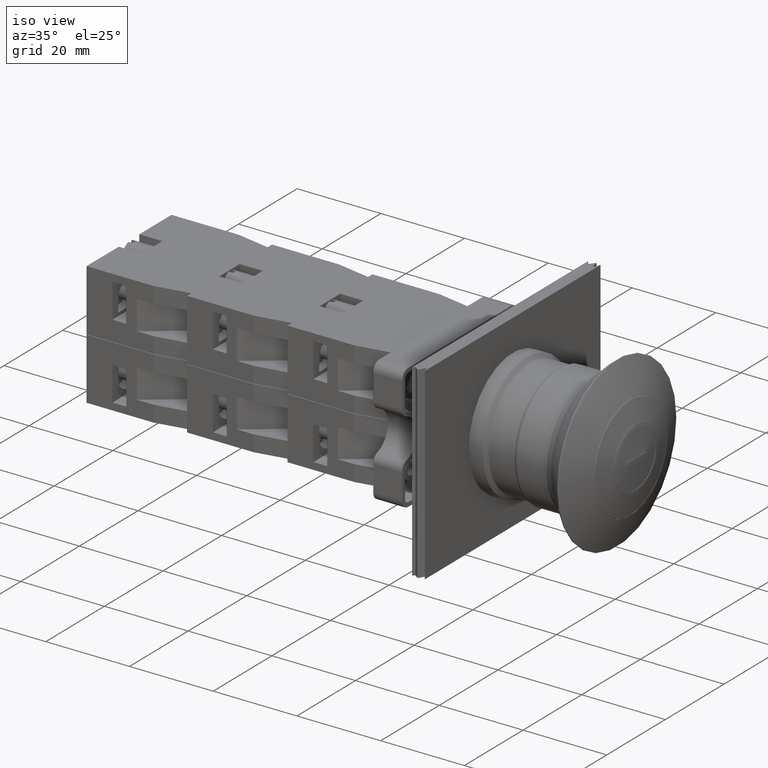
[diagram: clean part render]
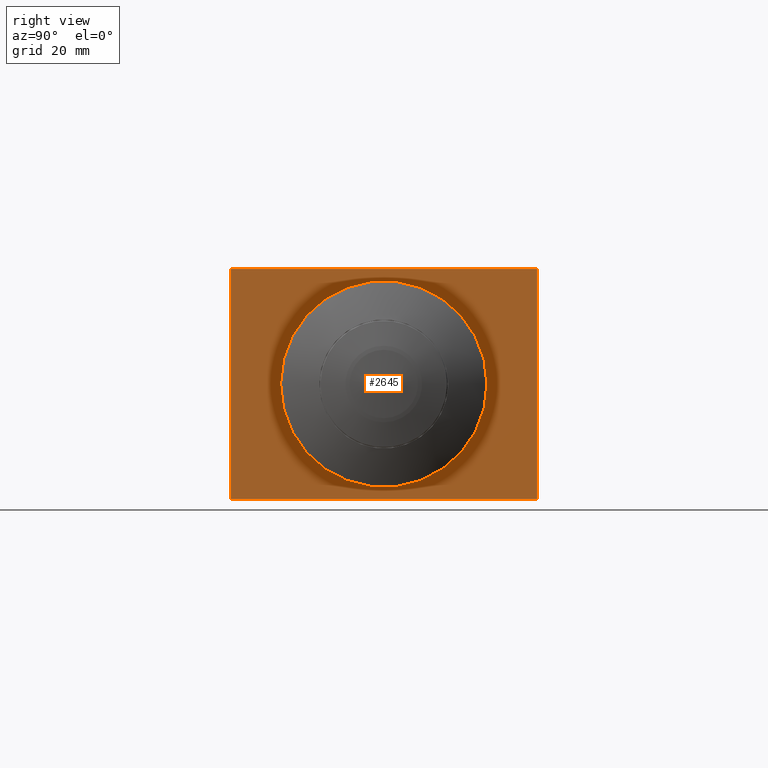
[diagram: tour spotlight — one face highlighted and labeled with its STEP entity id]
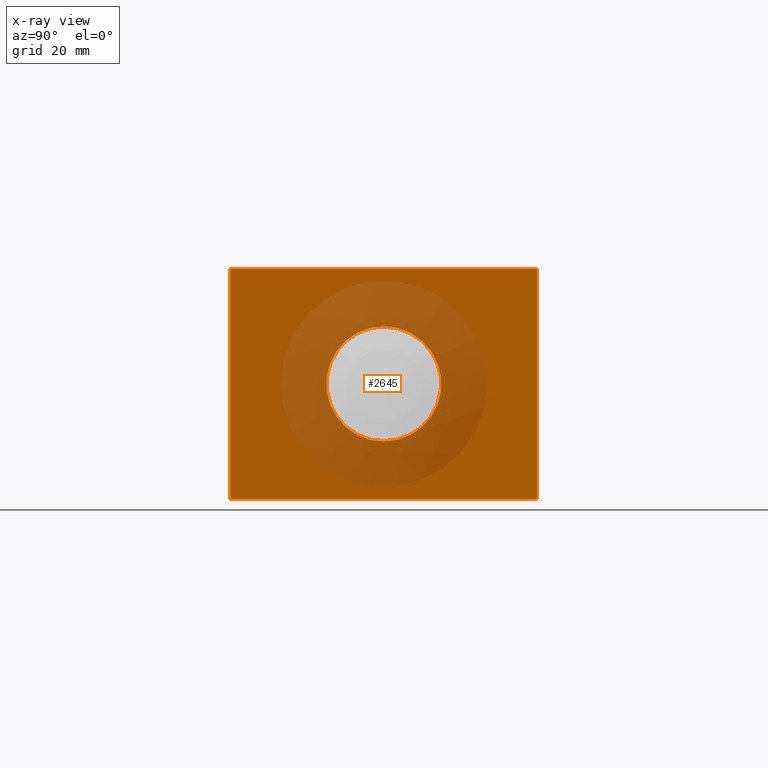
[diagram: x-ray of the same camera — body ghosted, this tour face saturated]
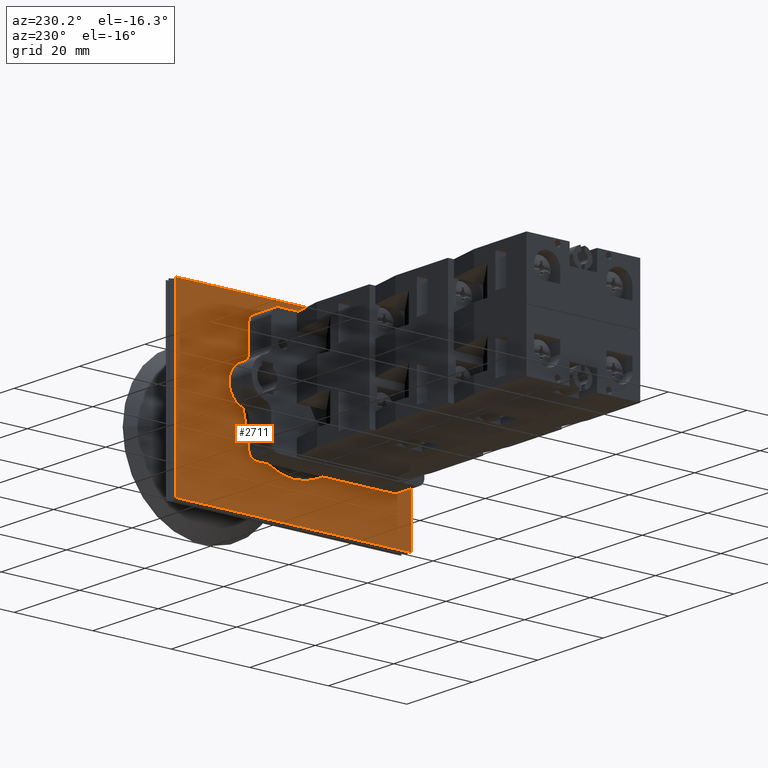
[diagram: tour spotlight — one face highlighted and labeled with its STEP entity id]
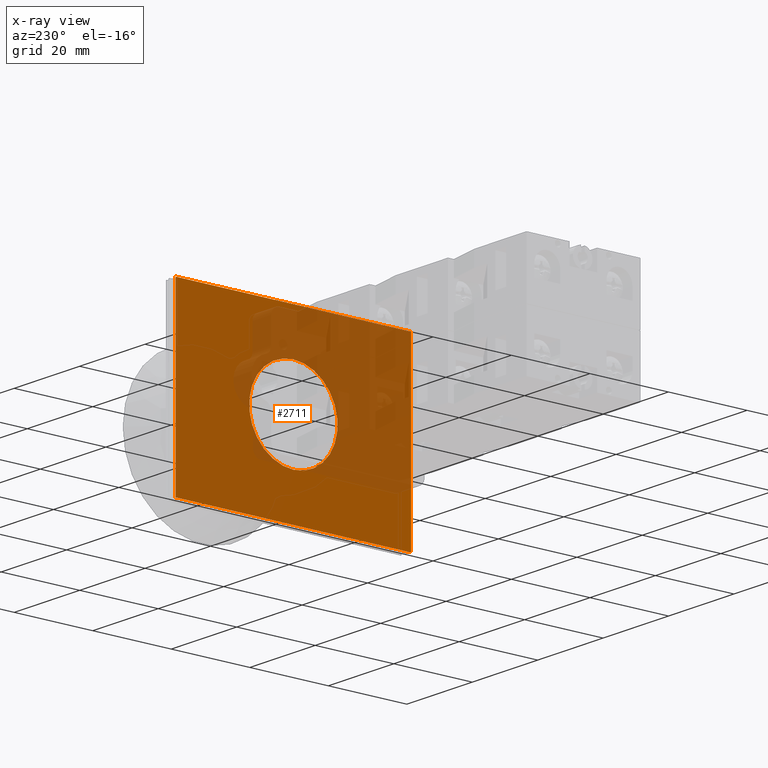
[diagram: x-ray of the same camera — body ghosted, this tour face saturated]
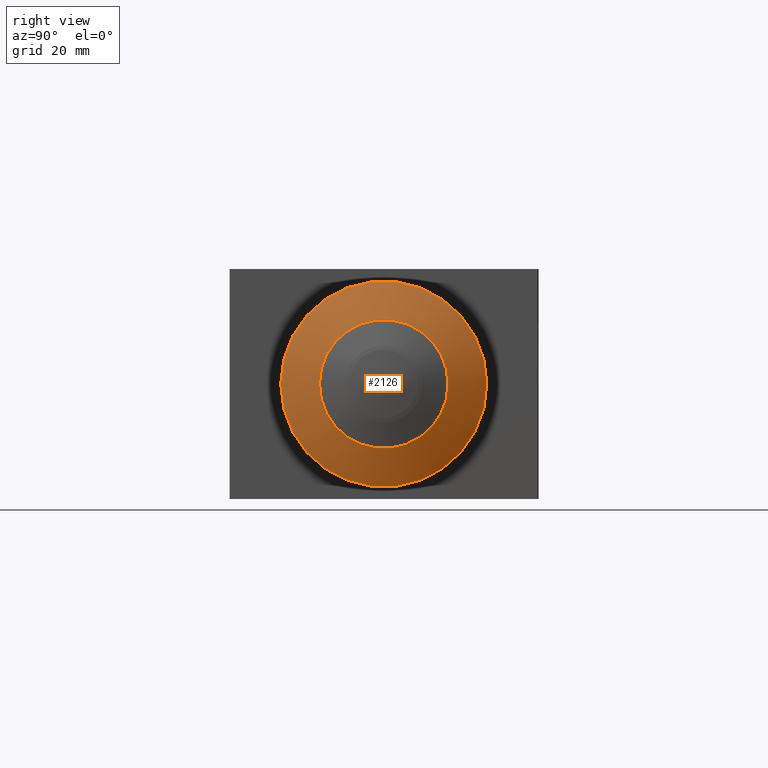
[diagram: tour spotlight — one face highlighted and labeled with its STEP entity id]
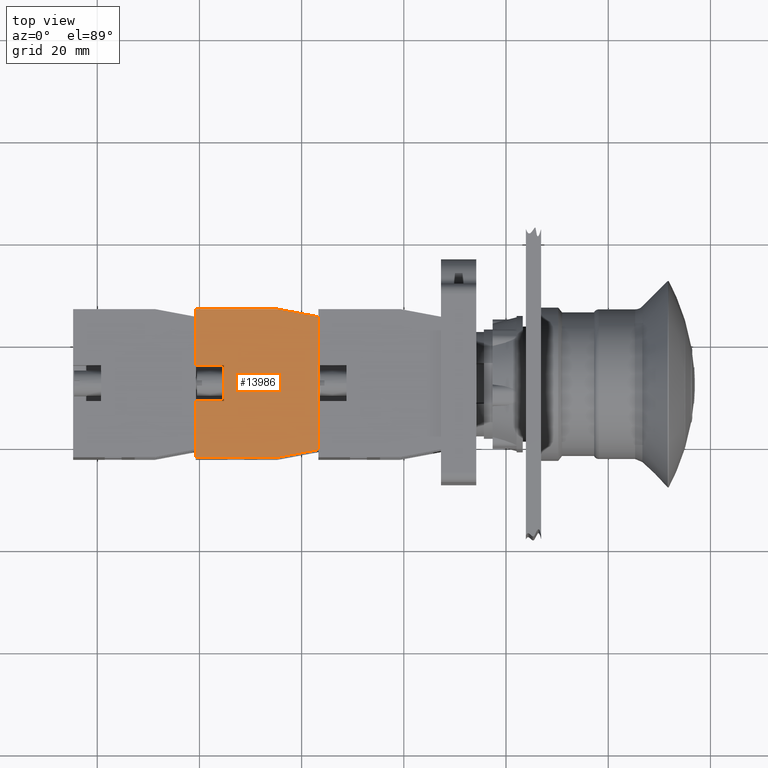
[diagram: tour spotlight — one face highlighted and labeled with its STEP entity id]
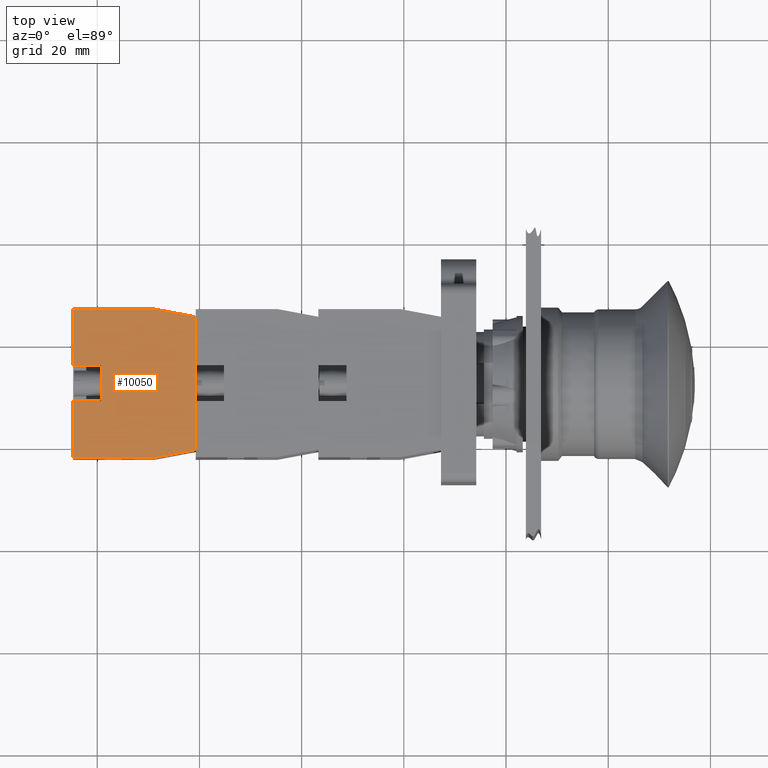
[diagram: tour spotlight — one face highlighted and labeled with its STEP entity id]
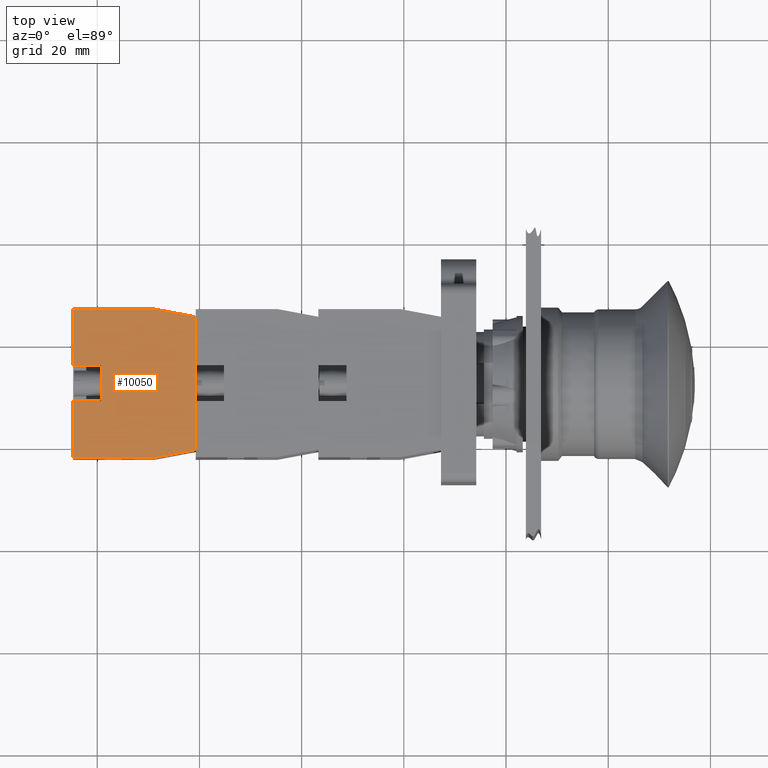
[diagram: tour spotlight — one face highlighted and labeled with its STEP entity id]
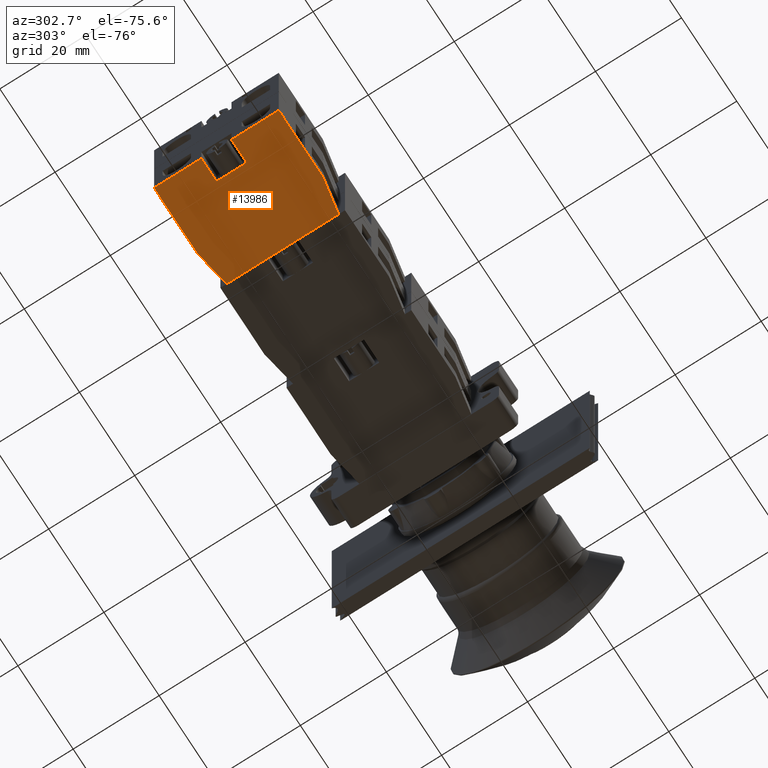
[diagram: tour spotlight — one face highlighted and labeled with its STEP entity id]
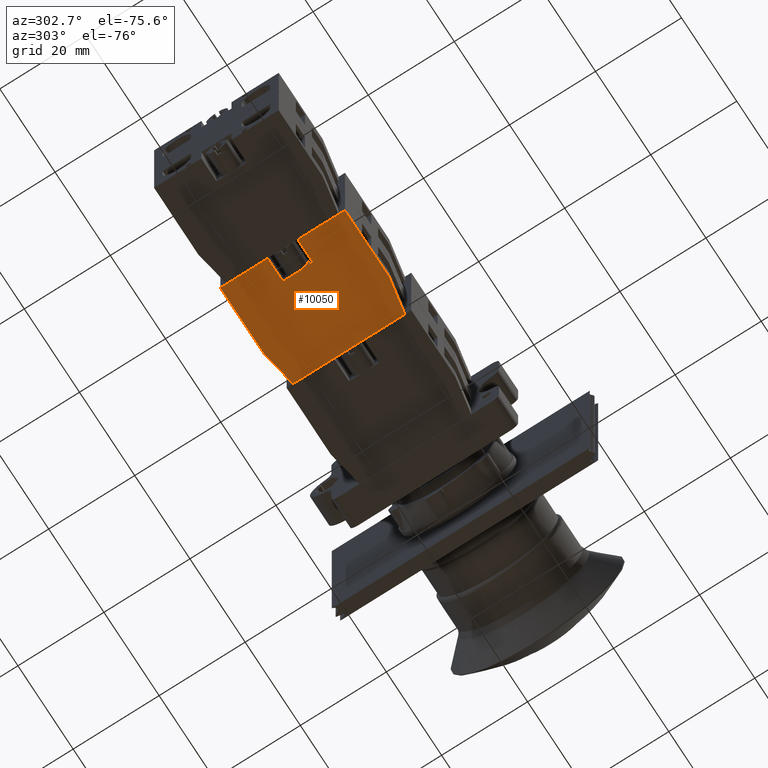
[diagram: tour spotlight — one face highlighted and labeled with its STEP entity id]
A machine part: a face-by-face anatomy tour. The part has 1171 B-rep faces; the first image is the clean iso view, then the 8 largest visible faces are spotlighted one at a time (largest first), each with its STEP entity span.

Face 1 — right view, entity #2645. An x-ray twin of the same camera follows (body ghosted, this face saturated) — the face is partly hidden behind the body. In plain terms, the highlighted planar face has unit normal (1, -0, 0).
Definition (entity closure, byte-faithful):
#2550=CARTESIAN_POINT('',(-12.704183619849175,-32.725398273954283,11.250000000000000));
#2551=VERTEX_POINT('',#2550);
#2552=CARTESIAN_POINT('',(-12.704183619849179,-32.725398273954283,22.500000000000000));
#2553=DIRECTION('',(-1.0,0.0,0.0));
#2554=DIRECTION('',(0.0,0.0,1.0));
#2555=AXIS2_PLACEMENT_3D('',#2552,#2553,#2554);
#2556=CIRCLE('',#2555,11.250000000000000);
#2557=EDGE_CURVE('',#2551,#2551,#2556,.T.);
#2575=CARTESIAN_POINT('',(-12.704183619849179,-2.725398273954287,45.0));
#2576=VERTEX_POINT('',#2575);
#2585=CARTESIAN_POINT('',(-12.704183619849179,-2.725398273954287,0.0));
#2586=VERTEX_POINT('',#2585);
#2587=CARTESIAN_POINT('',(-12.704183619849179,-2.725398273954287,0.0));
#2588=DIRECTION('',(0.0,0.0,1.0));
#2589=VECTOR('',#2588,45.0);
#2590=LINE('',#2587,#2589);
#2591=EDGE_CURVE('',#2586,#2576,#2590,.T.);
#2612=CARTESIAN_POINT('',(-12.704183619849179,-2.725398273954287,0.0));
#2613=DIRECTION('',(1.0,0.0,0.0));
#2614=DIRECTION('',(0.0,0.0,-1.0));
#2615=AXIS2_PLACEMENT_3D('',#2612,#2613,#2614);
#2616=PLANE('',#2615);
#2617=CARTESIAN_POINT('',(-12.704183619849172,-62.725398273954283,45.0));
#2618=VERTEX_POINT('',#2617);
#2619=CARTESIAN_POINT('',(-12.704183619849179,-2.725398273954287,45.0));
#2620=DIRECTION('',(0.0,-1.0,0.0));
#2621=VECTOR('',#2620,60.0);
#2622=LINE('',#2619,#2621);
#2623=EDGE_CURVE('',#2576,#2618,#2622,.T.);
#2624=ORIENTED_EDGE('',*,*,#2623,.T.);
#2625=CARTESIAN_POINT('',(-12.704183619849172,-62.725398273954283,0.0));
#2626=VERTEX_POINT('',#2625);
#2627=CARTESIAN_POINT('',(-12.704183619849172,-62.725398273954283,0.0));
#2628=DIRECTION('',(0.0,0.0,1.0));
#2629=VECTOR('',#2628,45.0);
#2630=LINE('',#2627,#2629);
#2631=EDGE_CURVE('',#2626,#2618,#2630,.T.);
#2632=ORIENTED_EDGE('',*,*,#2631,.F.);
#2633=CARTESIAN_POINT('',(-12.704183619849172,-62.725398273954283,0.0));
#2634=DIRECTION('',(0.0,1.0,0.0));
#2635=VECTOR('',#2634,60.0);
#2636=LINE('',#2633,#2635);
#2637=EDGE_CURVE('',#2626,#2586,#2636,.T.);
#2638=ORIENTED_EDGE('',*,*,#2637,.T.);
#2639=ORIENTED_EDGE('',*,*,#2591,.T.);
#2640=EDGE_LOOP('',(#2624,#2632,#2638,#2639));
#2641=FACE_OUTER_BOUND('',#2640,.T.);
#2642=ORIENTED_EDGE('',*,*,#2557,.T.);
#2643=EDGE_LOOP('',(#2642));
#2644=FACE_BOUND('',#2643,.T.);
#2645=ADVANCED_FACE('',(#2641,#2644),#2616,.T.);

Face 2 — auxiliary view, entity #2711. An x-ray twin of the same camera follows (body ghosted, this face saturated) — the face is partly hidden behind the body. In plain terms, the highlighted planar face has unit normal (-1, 0, -0).
Definition (entity closure, byte-faithful):
#2539=CARTESIAN_POINT('',(-15.704183619849179,-32.725398273954283,11.250000000000000));
#2540=VERTEX_POINT('',#2539);
#2541=CARTESIAN_POINT('',(-15.704183619849179,-32.725398273954283,22.500000000000000));
#2542=DIRECTION('',(1.0,0.0,0.0));
#2543=DIRECTION('',(0.0,0.0,1.0));
#2544=AXIS2_PLACEMENT_3D('',#2541,#2542,#2543);
#2545=CIRCLE('',#2544,11.250000000000000);
#2546=EDGE_CURVE('',#2540,#2540,#2545,.T.);
#2573=CARTESIAN_POINT('',(-15.704183619849179,-2.725398273954287,45.0));
#2574=VERTEX_POINT('',#2573);
#2593=CARTESIAN_POINT('',(-15.704183619849179,-2.725398273954287,0.0));
#2594=VERTEX_POINT('',#2593);
#2603=CARTESIAN_POINT('',(-15.704183619849179,-2.725398273954287,0.0));
#2604=DIRECTION('',(0.0,0.0,1.0));
#2605=VECTOR('',#2604,45.0);
#2606=LINE('',#2603,#2605);
#2607=EDGE_CURVE('',#2594,#2574,#2606,.T.);
#2657=CARTESIAN_POINT('',(-15.704183619849179,-62.725398273954283,45.0));
#2658=VERTEX_POINT('',#2657);
#2667=CARTESIAN_POINT('',(-15.704183619849179,-62.725398273954283,0.0));
#2668=VERTEX_POINT('',#2667);
#2669=CARTESIAN_POINT('',(-15.704183619849179,-62.725398273954283,0.0));
#2670=DIRECTION('',(0.0,0.0,1.0));
#2671=VECTOR('',#2670,45.0);
#2672=LINE('',#2669,#2671);
#2673=EDGE_CURVE('',#2668,#2658,#2672,.T.);
#2687=CARTESIAN_POINT('',(-15.704183619849179,-62.725398273954283,0.0));
#2688=DIRECTION('',(-1.0,0.0,0.0));
#2689=DIRECTION('',(0.0,0.0,1.0));
#2690=AXIS2_PLACEMENT_3D('',#2687,#2688,#2689);
#2691=PLANE('',#2690);
#2692=CARTESIAN_POINT('',(-15.704183619849179,-62.725398273954283,45.0));
#2693=DIRECTION('',(0.0,1.0,0.0));
#2694=VECTOR('',#2693,60.0);
#2695=LINE('',#2692,#2694);
#2696=EDGE_CURVE('',#2658,#2574,#2695,.T.);
#2697=ORIENTED_EDGE('',*,*,#2696,.T.);
#2698=ORIENTED_EDGE('',*,*,#2607,.F.);
#2699=CARTESIAN_POINT('',(-15.704183619849179,-2.725398273954287,0.0));
#2700=DIRECTION('',(0.0,-1.0,0.0));
#2701=VECTOR('',#2700,60.0);
#2702=LINE('',#2699,#2701);
#2703=EDGE_CURVE('',#2594,#2668,#2702,.T.);
#2704=ORIENTED_EDGE('',*,*,#2703,.T.);
#2705=ORIENTED_EDGE('',*,*,#2673,.T.);
#2706=EDGE_LOOP('',(#2697,#2698,#2704,#2705));
#2707=FACE_OUTER_BOUND('',#2706,.T.);
#2708=ORIENTED_EDGE('',*,*,#2546,.T.);
#2709=EDGE_LOOP('',(#2708));
#2710=FACE_BOUND('',#2709,.T.);
#2711=ADVANCED_FACE('',(#2707,#2710),#2691,.T.);

Face 3 — right view, entity #2126. In plain terms, the highlighted spherical surface has radius 42.9695 mm.
Definition (entity closure, byte-faithful):
#2092=CARTESIAN_POINT('',(15.667878094298802,21.284443144865229,0.0));
#2093=VERTEX_POINT('',#2092);
#2094=CARTESIAN_POINT('',(15.667878094298807,1.129839215727505,0.0));
#2095=DIRECTION('',(1.0,0.0,0.0));
#2096=DIRECTION('',(0.0,1.0,0.0));
#2097=AXIS2_PLACEMENT_3D('',#2094,#2095,#2096);
#2098=CIRCLE('',#2097,20.154603929137728);
#2099=EDGE_CURVE('',#2093,#2093,#2098,.T.);
#2107=CARTESIAN_POINT('',(-22.281675257115516,1.129839215727505,0.0));
#2108=DIRECTION('',(0.0,0.0,1.0));
#2109=DIRECTION('',(1.0,0.0,0.0));
#2110=AXIS2_PLACEMENT_3D('',#2107,#2108,#2109);
#2111=SPHERICAL_SURFACE('',#2110,42.969485208834605);
#2112=CARTESIAN_POINT('',(18.801493224914132,13.721500209791040,0.0));
#2113=VERTEX_POINT('',#2112);
#2114=CARTESIAN_POINT('',(18.801493224914140,1.129839215727505,0.0));
#2115=DIRECTION('',(1.0,0.0,0.0));
#2116=DIRECTION('',(0.0,1.0,0.0));
#2117=AXIS2_PLACEMENT_3D('',#2114,#2115,#2116);
#2118=CIRCLE('',#2117,12.591660994063536);
#2119=EDGE_CURVE('',#2113,#2113,#2118,.T.);
#2120=ORIENTED_EDGE('',*,*,#2119,.F.);
#2121=EDGE_LOOP('',(#2120));
#2122=FACE_OUTER_BOUND('',#2121,.T.);
#2123=ORIENTED_EDGE('',*,*,#2099,.T.);
#2124=EDGE_LOOP('',(#2123));
#2125=FACE_BOUND('',#2124,.T.);
#2126=ADVANCED_FACE('',(#2122,#2125),#2111,.T.);

Face 4 — top view, entity #13986. In plain terms, the highlighted planar face has unit normal (-0, -0, 1).
Definition (entity closure, byte-faithful):
#12289=CARTESIAN_POINT('',(-44.936741828918457,7.797073323279626,14.699999999999999));
#12290=VERTEX_POINT('',#12289);
#12297=CARTESIAN_POINT('',(-44.936741828918471,23.797073323279623,14.699999999999999));
#12298=VERTEX_POINT('',#12297);
#12299=CARTESIAN_POINT('',(-44.936741828918457,7.797073323279626,14.699999999999999));
#12300=DIRECTION('',(0.0,1.0,0.0));
#12301=VECTOR('',#12300,15.999999999999996);
#12302=LINE('',#12299,#12301);
#12303=EDGE_CURVE('',#12290,#12298,#12302,.T.);
#12370=CARTESIAN_POINT('',(-43.436741828918457,-0.202926676720380,14.699999999999999));
#12371=VERTEX_POINT('',#12370);
#12378=CARTESIAN_POINT('',(-43.436741828918457,-0.202926676720380,14.699999999999999));
#12379=DIRECTION('',(-0.184288535050185,0.982872186934322,0.0));
#12380=VECTOR('',#12379,8.139410298049860);
#12381=LINE('',#12378,#12380);
#12382=EDGE_CURVE('',#12371,#12290,#12381,.T.);
#12521=CARTESIAN_POINT('',(-17.436741828918457,-0.202926676720377,14.699999999999999));
#12522=VERTEX_POINT('',#12521);
#12529=CARTESIAN_POINT('',(-17.436741828918457,-0.202926676720377,14.699999999999999));
#12530=DIRECTION('',(-1.0,0.0,0.0));
#12531=VECTOR('',#12530,26.0);
#12532=LINE('',#12529,#12531);
#12533=EDGE_CURVE('',#12522,#12371,#12532,.T.);
#12614=CARTESIAN_POINT('',(-15.936741828918466,7.797073323279626,14.699999999999999));
#12615=VERTEX_POINT('',#12614);
#12622=CARTESIAN_POINT('',(-15.936741828918466,7.797073323279626,14.699999999999999));
#12623=DIRECTION('',(-0.184288535050184,-0.982872186934322,0.0));
#12624=VECTOR('',#12623,8.139410298049855);
#12625=LINE('',#12622,#12624);
#12626=EDGE_CURVE('',#12615,#12522,#12625,.T.);
#13721=CARTESIAN_POINT('',(-26.936741828918468,18.297073323279626,14.699999999999999));
#13722=VERTEX_POINT('',#13721);
#13731=CARTESIAN_POINT('',(-26.936741828918468,23.797073323279626,14.699999999999999));
#13732=VERTEX_POINT('',#13731);
#13733=CARTESIAN_POINT('',(-26.936741828918468,23.797073323279626,14.699999999999999));
#13734=DIRECTION('',(0.0,-1.0,0.0));
#13735=VECTOR('',#13734,5.500000000000000);
#13736=LINE('',#13733,#13735);
#13737=EDGE_CURVE('',#13732,#13722,#13736,.T.);
#13792=CARTESIAN_POINT('',(-33.936741828918464,18.297073323279619,14.699999999999999));
#13793=VERTEX_POINT('',#13792);
#13801=CARTESIAN_POINT('',(-33.936741828918464,23.797073323279623,14.699999999999999));
#13802=VERTEX_POINT('',#13801);
#13809=CARTESIAN_POINT('',(-33.936741828918464,18.297073323279619,14.699999999999999));
#13810=DIRECTION('',(0.0,1.0,0.0));
#13811=VECTOR('',#13810,5.500000000000004);
#13812=LINE('',#13809,#13811);
#13813=EDGE_CURVE('',#13793,#13802,#13812,.T.);
#13826=CARTESIAN_POINT('',(-26.936741828918468,18.297073323279626,14.699999999999999));
#13827=DIRECTION('',(-1.0,0.0,0.0));
#13828=VECTOR('',#13827,6.999999999999996);
#13829=LINE('',#13826,#13828);
#13830=EDGE_CURVE('',#13722,#13793,#13829,.T.);
#13846=CARTESIAN_POINT('',(-15.936741828918466,23.797073323279626,14.699999999999999));
#13847=VERTEX_POINT('',#13846);
#13848=CARTESIAN_POINT('',(-26.936741828918468,23.797073323279626,14.699999999999999));
#13849=DIRECTION('',(1.0,0.0,0.0));
#13850=VECTOR('',#13849,11.000000000000002);
#13851=LINE('',#13848,#13850);
#13852=EDGE_CURVE('',#13732,#13847,#13851,.T.);
#13869=CARTESIAN_POINT('',(-44.936741828918471,23.797073323279623,14.699999999999999));
#13870=DIRECTION('',(1.0,0.0,0.0));
#13871=VECTOR('',#13870,11.000000000000007);
#13872=LINE('',#13869,#13871);
#13873=EDGE_CURVE('',#12298,#13802,#13872,.T.);
#13917=CARTESIAN_POINT('',(-15.936741828918466,23.797073323279626,14.699999999999999));
#13918=DIRECTION('',(0.0,-1.0,0.0));
#13919=VECTOR('',#13918,16.0);
#13920=LINE('',#13917,#13919);
#13921=EDGE_CURVE('',#13847,#12615,#13920,.T.);
#13969=CARTESIAN_POINT('',(-30.436741828918457,12.124046801833057,14.699999999999999));
#13970=DIRECTION('',(0.0,0.0,1.0));
#13971=DIRECTION('',(1.0,0.0,0.0));
#13972=AXIS2_PLACEMENT_3D('',#13969,#13970,#13971);
#13973=PLANE('',#13972);
#13974=ORIENTED_EDGE('',*,*,#13813,.T.);
#13975=ORIENTED_EDGE('',*,*,#13873,.F.);
#13976=ORIENTED_EDGE('',*,*,#12303,.F.);
#13977=ORIENTED_EDGE('',*,*,#12382,.F.);
#13978=ORIENTED_EDGE('',*,*,#12533,.F.);
#13979=ORIENTED_EDGE('',*,*,#12626,.F.);
#13980=ORIENTED_EDGE('',*,*,#13921,.F.);
#13981=ORIENTED_EDGE('',*,*,#13852,.F.);
#13982=ORIENTED_EDGE('',*,*,#13737,.T.);
#13983=ORIENTED_EDGE('',*,*,#13830,.T.);
#13984=EDGE_LOOP('',(#13974,#13975,#13976,#13977,#13978,#13979,#13980,#13981,#13982,#13983));
#13985=FACE_OUTER_BOUND('',#13984,.T.);
#13986=ADVANCED_FACE('',(#13985),#13973,.T.);

Face 5 — top view, entity #10050. In plain terms, the highlighted planar face has unit normal (-0, -0, 1).
Definition (entity closure, byte-faithful):
#8353=CARTESIAN_POINT('',(-44.936741828918457,7.797073323279626,14.699999999999999));
#8354=VERTEX_POINT('',#8353);
#8361=CARTESIAN_POINT('',(-44.936741828918471,23.797073323279623,14.699999999999999));
#8362=VERTEX_POINT('',#8361);
#8363=CARTESIAN_POINT('',(-44.936741828918457,7.797073323279626,14.699999999999999));
#8364=DIRECTION('',(0.0,1.0,0.0));
#8365=VECTOR('',#8364,15.999999999999996);
#8366=LINE('',#8363,#8365);
#8367=EDGE_CURVE('',#8354,#8362,#8366,.T.);
#8434=CARTESIAN_POINT('',(-43.436741828918457,-0.202926676720380,14.699999999999999));
#8435=VERTEX_POINT('',#8434);
#8442=CARTESIAN_POINT('',(-43.436741828918457,-0.202926676720380,14.699999999999999));
#8443=DIRECTION('',(-0.184288535050185,0.982872186934322,0.0));
#8444=VECTOR('',#8443,8.139410298049860);
#8445=LINE('',#8442,#8444);
#8446=EDGE_CURVE('',#8435,#8354,#8445,.T.);
#8585=CARTESIAN_POINT('',(-17.436741828918457,-0.202926676720377,14.699999999999999));
#8586=VERTEX_POINT('',#8585);
#8593=CARTESIAN_POINT('',(-17.436741828918457,-0.202926676720377,14.699999999999999));
#8594=DIRECTION('',(-1.0,0.0,0.0));
#8595=VECTOR('',#8594,26.0);
#8596=LINE('',#8593,#8595);
#8597=EDGE_CURVE('',#8586,#8435,#8596,.T.);
#8678=CARTESIAN_POINT('',(-15.936741828918466,7.797073323279626,14.699999999999999));
#8679=VERTEX_POINT('',#8678);
#8686=CARTESIAN_POINT('',(-15.936741828918466,7.797073323279626,14.699999999999999));
#8687=DIRECTION('',(-0.184288535050184,-0.982872186934322,0.0));
#8688=VECTOR('',#8687,8.139410298049855);
#8689=LINE('',#8686,#8688);
#8690=EDGE_CURVE('',#8679,#8586,#8689,.T.);
#9785=CARTESIAN_POINT('',(-26.936741828918468,18.297073323279626,14.699999999999999));
#9786=VERTEX_POINT('',#9785);
#9795=CARTESIAN_POINT('',(-26.936741828918468,23.797073323279626,14.699999999999999));
#9796=VERTEX_POINT('',#9795);
#9797=CARTESIAN_POINT('',(-26.936741828918468,23.797073323279626,14.699999999999999));
#9798=DIRECTION('',(0.0,-1.0,0.0));
#9799=VECTOR('',#9798,5.500000000000000);
#9800=LINE('',#9797,#9799);
#9801=EDGE_CURVE('',#9796,#9786,#9800,.T.);
#9856=CARTESIAN_POINT('',(-33.936741828918464,18.297073323279619,14.699999999999999));
#9857=VERTEX_POINT('',#9856);
#9865=CARTESIAN_POINT('',(-33.936741828918464,23.797073323279623,14.699999999999999));
#9866=VERTEX_POINT('',#9865);
#9873=CARTESIAN_POINT('',(-33.936741828918464,18.297073323279619,14.699999999999999));
#9874=DIRECTION('',(0.0,1.0,0.0));
#9875=VECTOR('',#9874,5.500000000000004);
#9876=LINE('',#9873,#9875);
#9877=EDGE_CURVE('',#9857,#9866,#9876,.T.);
#9890=CARTESIAN_POINT('',(-26.936741828918468,18.297073323279626,14.699999999999999));
#9891=DIRECTION('',(-1.0,0.0,0.0));
#9892=VECTOR('',#9891,6.999999999999996);
#9893=LINE('',#9890,#9892);
#9894=EDGE_CURVE('',#9786,#9857,#9893,.T.);
#9910=CARTESIAN_POINT('',(-15.936741828918466,23.797073323279626,14.699999999999999));
#9911=VERTEX_POINT('',#9910);
#9912=CARTESIAN_POINT('',(-26.936741828918468,23.797073323279626,14.699999999999999));
#9913=DIRECTION('',(1.0,0.0,0.0));
#9914=VECTOR('',#9913,11.000000000000002);
#9915=LINE('',#9912,#9914);
#9916=EDGE_CURVE('',#9796,#9911,#9915,.T.);
#9933=CARTESIAN_POINT('',(-44.936741828918471,23.797073323279623,14.699999999999999));
#9934=DIRECTION('',(1.0,0.0,0.0));
#9935=VECTOR('',#9934,11.000000000000007);
#9936=LINE('',#9933,#9935);
#9937=EDGE_CURVE('',#8362,#9866,#9936,.T.);
#9981=CARTESIAN_POINT('',(-15.936741828918466,23.797073323279626,14.699999999999999));
#9982=DIRECTION('',(0.0,-1.0,0.0));
#9983=VECTOR('',#9982,16.0);
#9984=LINE('',#9981,#9983);
#9985=EDGE_CURVE('',#9911,#8679,#9984,.T.);
#10033=CARTESIAN_POINT('',(-30.436741828918457,12.124046801833057,14.699999999999999));
#10034=DIRECTION('',(0.0,0.0,1.0));
#10035=DIRECTION('',(1.0,0.0,0.0));
#10036=AXIS2_PLACEMENT_3D('',#10033,#10034,#10035);
#10037=PLANE('',#10036);
#10038=ORIENTED_EDGE('',*,*,#9877,.T.);
#10039=ORIENTED_EDGE('',*,*,#9937,.F.);
#10040=ORIENTED_EDGE('',*,*,#8367,.F.);
#10041=ORIENTED_EDGE('',*,*,#8446,.F.);
#10042=ORIENTED_EDGE('',*,*,#8597,.F.);
#10043=ORIENTED_EDGE('',*,*,#8690,.F.);
#10044=ORIENTED_EDGE('',*,*,#9985,.F.);
#10045=ORIENTED_EDGE('',*,*,#9916,.F.);
#10046=ORIENTED_EDGE('',*,*,#9801,.T.);
#10047=ORIENTED_EDGE('',*,*,#9894,.T.);
#10048=EDGE_LOOP('',(#10038,#10039,#10040,#10041,#10042,#10043,#10044,#10045,#10046,#10047));
#10049=FACE_OUTER_BOUND('',#10048,.T.);
#10050=ADVANCED_FACE('',(#10049),#10037,.T.);

Face 6 — top view, entity #10050. In plain terms, the highlighted planar face has unit normal (-0, -0, 1).
Definition (entity closure, byte-faithful):
#8353=CARTESIAN_POINT('',(-44.936741828918457,7.797073323279626,14.699999999999999));
#8354=VERTEX_POINT('',#8353);
#8361=CARTESIAN_POINT('',(-44.936741828918471,23.797073323279623,14.699999999999999));
#8362=VERTEX_POINT('',#8361);
#8363=CARTESIAN_POINT('',(-44.936741828918457,7.797073323279626,14.699999999999999));
#8364=DIRECTION('',(0.0,1.0,0.0));
#8365=VECTOR('',#8364,15.999999999999996);
#8366=LINE('',#8363,#8365);
#8367=EDGE_CURVE('',#8354,#8362,#8366,.T.);
#8434=CARTESIAN_POINT('',(-43.436741828918457,-0.202926676720380,14.699999999999999));
#8435=VERTEX_POINT('',#8434);
#8442=CARTESIAN_POINT('',(-43.436741828918457,-0.202926676720380,14.699999999999999));
#8443=DIRECTION('',(-0.184288535050185,0.982872186934322,0.0));
#8444=VECTOR('',#8443,8.139410298049860);
#8445=LINE('',#8442,#8444);
#8446=EDGE_CURVE('',#8435,#8354,#8445,.T.);
#8585=CARTESIAN_POINT('',(-17.436741828918457,-0.202926676720377,14.699999999999999));
#8586=VERTEX_POINT('',#8585);
#8593=CARTESIAN_POINT('',(-17.436741828918457,-0.202926676720377,14.699999999999999));
#8594=DIRECTION('',(-1.0,0.0,0.0));
#8595=VECTOR('',#8594,26.0);
#8596=LINE('',#8593,#8595);
#8597=EDGE_CURVE('',#8586,#8435,#8596,.T.);
#8678=CARTESIAN_POINT('',(-15.936741828918466,7.797073323279626,14.699999999999999));
#8679=VERTEX_POINT('',#8678);
#8686=CARTESIAN_POINT('',(-15.936741828918466,7.797073323279626,14.699999999999999));
#8687=DIRECTION('',(-0.184288535050184,-0.982872186934322,0.0));
#8688=VECTOR('',#8687,8.139410298049855);
#8689=LINE('',#8686,#8688);
#8690=EDGE_CURVE('',#8679,#8586,#8689,.T.);
#9785=CARTESIAN_POINT('',(-26.936741828918468,18.297073323279626,14.699999999999999));
#9786=VERTEX_POINT('',#9785);
#9795=CARTESIAN_POINT('',(-26.936741828918468,23.797073323279626,14.699999999999999));
#9796=VERTEX_POINT('',#9795);
#9797=CARTESIAN_POINT('',(-26.936741828918468,23.797073323279626,14.699999999999999));
#9798=DIRECTION('',(0.0,-1.0,0.0));
#9799=VECTOR('',#9798,5.500000000000000);
#9800=LINE('',#9797,#9799);
#9801=EDGE_CURVE('',#9796,#9786,#9800,.T.);
#9856=CARTESIAN_POINT('',(-33.936741828918464,18.297073323279619,14.699999999999999));
#9857=VERTEX_POINT('',#9856);
#9865=CARTESIAN_POINT('',(-33.936741828918464,23.797073323279623,14.699999999999999));
#9866=VERTEX_POINT('',#9865);
#9873=CARTESIAN_POINT('',(-33.936741828918464,18.297073323279619,14.699999999999999));
#9874=DIRECTION('',(0.0,1.0,0.0));
#9875=VECTOR('',#9874,5.500000000000004);
#9876=LINE('',#9873,#9875);
#9877=EDGE_CURVE('',#9857,#9866,#9876,.T.);
#9890=CARTESIAN_POINT('',(-26.936741828918468,18.297073323279626,14.699999999999999));
#9891=DIRECTION('',(-1.0,0.0,0.0));
#9892=VECTOR('',#9891,6.999999999999996);
#9893=LINE('',#9890,#9892);
#9894=EDGE_CURVE('',#9786,#9857,#9893,.T.);
#9910=CARTESIAN_POINT('',(-15.936741828918466,23.797073323279626,14.699999999999999));
#9911=VERTEX_POINT('',#9910);
#9912=CARTESIAN_POINT('',(-26.936741828918468,23.797073323279626,14.699999999999999));
#9913=DIRECTION('',(1.0,0.0,0.0));
#9914=VECTOR('',#9913,11.000000000000002);
#9915=LINE('',#9912,#9914);
#9916=EDGE_CURVE('',#9796,#9911,#9915,.T.);
#9933=CARTESIAN_POINT('',(-44.936741828918471,23.797073323279623,14.699999999999999));
#9934=DIRECTION('',(1.0,0.0,0.0));
#9935=VECTOR('',#9934,11.000000000000007);
#9936=LINE('',#9933,#9935);
#9937=EDGE_CURVE('',#8362,#9866,#9936,.T.);
#9981=CARTESIAN_POINT('',(-15.936741828918466,23.797073323279626,14.699999999999999));
#9982=DIRECTION('',(0.0,-1.0,0.0));
#9983=VECTOR('',#9982,16.0);
#9984=LINE('',#9981,#9983);
#9985=EDGE_CURVE('',#9911,#8679,#9984,.T.);
#10033=CARTESIAN_POINT('',(-30.436741828918457,12.124046801833057,14.699999999999999));
#10034=DIRECTION('',(0.0,0.0,1.0));
#10035=DIRECTION('',(1.0,0.0,0.0));
#10036=AXIS2_PLACEMENT_3D('',#10033,#10034,#10035);
#10037=PLANE('',#10036);
#10038=ORIENTED_EDGE('',*,*,#9877,.T.);
#10039=ORIENTED_EDGE('',*,*,#9937,.F.);
#10040=ORIENTED_EDGE('',*,*,#8367,.F.);
#10041=ORIENTED_EDGE('',*,*,#8446,.F.);
#10042=ORIENTED_EDGE('',*,*,#8597,.F.);
#10043=ORIENTED_EDGE('',*,*,#8690,.F.);
#10044=ORIENTED_EDGE('',*,*,#9985,.F.);
#10045=ORIENTED_EDGE('',*,*,#9916,.F.);
#10046=ORIENTED_EDGE('',*,*,#9801,.T.);
#10047=ORIENTED_EDGE('',*,*,#9894,.T.);
#10048=EDGE_LOOP('',(#10038,#10039,#10040,#10041,#10042,#10043,#10044,#10045,#10046,#10047));
#10049=FACE_OUTER_BOUND('',#10048,.T.);
#10050=ADVANCED_FACE('',(#10049),#10037,.T.);

Face 7 — auxiliary view, entity #13986. In plain terms, the highlighted planar face has unit normal (-0, 0, -1).
Definition (entity closure, byte-faithful):
#12289=CARTESIAN_POINT('',(-44.936741828918457,7.797073323279626,14.699999999999999));
#12290=VERTEX_POINT('',#12289);
#12297=CARTESIAN_POINT('',(-44.936741828918471,23.797073323279623,14.699999999999999));
#12298=VERTEX_POINT('',#12297);
#12299=CARTESIAN_POINT('',(-44.936741828918457,7.797073323279626,14.699999999999999));
#12300=DIRECTION('',(0.0,1.0,0.0));
#12301=VECTOR('',#12300,15.999999999999996);
#12302=LINE('',#12299,#12301);
#12303=EDGE_CURVE('',#12290,#12298,#12302,.T.);
#12370=CARTESIAN_POINT('',(-43.436741828918457,-0.202926676720380,14.699999999999999));
#12371=VERTEX_POINT('',#12370);
#12378=CARTESIAN_POINT('',(-43.436741828918457,-0.202926676720380,14.699999999999999));
#12379=DIRECTION('',(-0.184288535050185,0.982872186934322,0.0));
#12380=VECTOR('',#12379,8.139410298049860);
#12381=LINE('',#12378,#12380);
#12382=EDGE_CURVE('',#12371,#12290,#12381,.T.);
#12521=CARTESIAN_POINT('',(-17.436741828918457,-0.202926676720377,14.699999999999999));
#12522=VERTEX_POINT('',#12521);
#12529=CARTESIAN_POINT('',(-17.436741828918457,-0.202926676720377,14.699999999999999));
#12530=DIRECTION('',(-1.0,0.0,0.0));
#12531=VECTOR('',#12530,26.0);
#12532=LINE('',#12529,#12531);
#12533=EDGE_CURVE('',#12522,#12371,#12532,.T.);
#12614=CARTESIAN_POINT('',(-15.936741828918466,7.797073323279626,14.699999999999999));
#12615=VERTEX_POINT('',#12614);
#12622=CARTESIAN_POINT('',(-15.936741828918466,7.797073323279626,14.699999999999999));
#12623=DIRECTION('',(-0.184288535050184,-0.982872186934322,0.0));
#12624=VECTOR('',#12623,8.139410298049855);
#12625=LINE('',#12622,#12624);
#12626=EDGE_CURVE('',#12615,#12522,#12625,.T.);
#13721=CARTESIAN_POINT('',(-26.936741828918468,18.297073323279626,14.699999999999999));
#13722=VERTEX_POINT('',#13721);
#13731=CARTESIAN_POINT('',(-26.936741828918468,23.797073323279626,14.699999999999999));
#13732=VERTEX_POINT('',#13731);
#13733=CARTESIAN_POINT('',(-26.936741828918468,23.797073323279626,14.699999999999999));
#13734=DIRECTION('',(0.0,-1.0,0.0));
#13735=VECTOR('',#13734,5.500000000000000);
#13736=LINE('',#13733,#13735);
#13737=EDGE_CURVE('',#13732,#13722,#13736,.T.);
#13792=CARTESIAN_POINT('',(-33.936741828918464,18.297073323279619,14.699999999999999));
#13793=VERTEX_POINT('',#13792);
#13801=CARTESIAN_POINT('',(-33.936741828918464,23.797073323279623,14.699999999999999));
#13802=VERTEX_POINT('',#13801);
#13809=CARTESIAN_POINT('',(-33.936741828918464,18.297073323279619,14.699999999999999));
#13810=DIRECTION('',(0.0,1.0,0.0));
#13811=VECTOR('',#13810,5.500000000000004);
#13812=LINE('',#13809,#13811);
#13813=EDGE_CURVE('',#13793,#13802,#13812,.T.);
#13826=CARTESIAN_POINT('',(-26.936741828918468,18.297073323279626,14.699999999999999));
#13827=DIRECTION('',(-1.0,0.0,0.0));
#13828=VECTOR('',#13827,6.999999999999996);
#13829=LINE('',#13826,#13828);
#13830=EDGE_CURVE('',#13722,#13793,#13829,.T.);
#13846=CARTESIAN_POINT('',(-15.936741828918466,23.797073323279626,14.699999999999999));
#13847=VERTEX_POINT('',#13846);
#13848=CARTESIAN_POINT('',(-26.936741828918468,23.797073323279626,14.699999999999999));
#13849=DIRECTION('',(1.0,0.0,0.0));
#13850=VECTOR('',#13849,11.000000000000002);
#13851=LINE('',#13848,#13850);
#13852=EDGE_CURVE('',#13732,#13847,#13851,.T.);
#13869=CARTESIAN_POINT('',(-44.936741828918471,23.797073323279623,14.699999999999999));
#13870=DIRECTION('',(1.0,0.0,0.0));
#13871=VECTOR('',#13870,11.000000000000007);
#13872=LINE('',#13869,#13871);
#13873=EDGE_CURVE('',#12298,#13802,#13872,.T.);
#13917=CARTESIAN_POINT('',(-15.936741828918466,23.797073323279626,14.699999999999999));
#13918=DIRECTION('',(0.0,-1.0,0.0));
#13919=VECTOR('',#13918,16.0);
#13920=LINE('',#13917,#13919);
#13921=EDGE_CURVE('',#13847,#12615,#13920,.T.);
#13969=CARTESIAN_POINT('',(-30.436741828918457,12.124046801833057,14.699999999999999));
#13970=DIRECTION('',(0.0,0.0,1.0));
#13971=DIRECTION('',(1.0,0.0,0.0));
#13972=AXIS2_PLACEMENT_3D('',#13969,#13970,#13971);
#13973=PLANE('',#13972);
#13974=ORIENTED_EDGE('',*,*,#13813,.T.);
#13975=ORIENTED_EDGE('',*,*,#13873,.F.);
#13976=ORIENTED_EDGE('',*,*,#12303,.F.);
#13977=ORIENTED_EDGE('',*,*,#12382,.F.);
#13978=ORIENTED_EDGE('',*,*,#12533,.F.);
#13979=ORIENTED_EDGE('',*,*,#12626,.F.);
#13980=ORIENTED_EDGE('',*,*,#13921,.F.);
#13981=ORIENTED_EDGE('',*,*,#13852,.F.);
#13982=ORIENTED_EDGE('',*,*,#13737,.T.);
#13983=ORIENTED_EDGE('',*,*,#13830,.T.);
#13984=EDGE_LOOP('',(#13974,#13975,#13976,#13977,#13978,#13979,#13980,#13981,#13982,#13983));
#13985=FACE_OUTER_BOUND('',#13984,.T.);
#13986=ADVANCED_FACE('',(#13985),#13973,.T.);

Face 8 — auxiliary view, entity #10050. In plain terms, the highlighted planar face has unit normal (-0, 0, -1).
Definition (entity closure, byte-faithful):
#8353=CARTESIAN_POINT('',(-44.936741828918457,7.797073323279626,14.699999999999999));
#8354=VERTEX_POINT('',#8353);
#8361=CARTESIAN_POINT('',(-44.936741828918471,23.797073323279623,14.699999999999999));
#8362=VERTEX_POINT('',#8361);
#8363=CARTESIAN_POINT('',(-44.936741828918457,7.797073323279626,14.699999999999999));
#8364=DIRECTION('',(0.0,1.0,0.0));
#8365=VECTOR('',#8364,15.999999999999996);
#8366=LINE('',#8363,#8365);
#8367=EDGE_CURVE('',#8354,#8362,#8366,.T.);
#8434=CARTESIAN_POINT('',(-43.436741828918457,-0.202926676720380,14.699999999999999));
#8435=VERTEX_POINT('',#8434);
#8442=CARTESIAN_POINT('',(-43.436741828918457,-0.202926676720380,14.699999999999999));
#8443=DIRECTION('',(-0.184288535050185,0.982872186934322,0.0));
#8444=VECTOR('',#8443,8.139410298049860);
#8445=LINE('',#8442,#8444);
#8446=EDGE_CURVE('',#8435,#8354,#8445,.T.);
#8585=CARTESIAN_POINT('',(-17.436741828918457,-0.202926676720377,14.699999999999999));
#8586=VERTEX_POINT('',#8585);
#8593=CARTESIAN_POINT('',(-17.436741828918457,-0.202926676720377,14.699999999999999));
#8594=DIRECTION('',(-1.0,0.0,0.0));
#8595=VECTOR('',#8594,26.0);
#8596=LINE('',#8593,#8595);
#8597=EDGE_CURVE('',#8586,#8435,#8596,.T.);
#8678=CARTESIAN_POINT('',(-15.936741828918466,7.797073323279626,14.699999999999999));
#8679=VERTEX_POINT('',#8678);
#8686=CARTESIAN_POINT('',(-15.936741828918466,7.797073323279626,14.699999999999999));
#8687=DIRECTION('',(-0.184288535050184,-0.982872186934322,0.0));
#8688=VECTOR('',#8687,8.139410298049855);
#8689=LINE('',#8686,#8688);
#8690=EDGE_CURVE('',#8679,#8586,#8689,.T.);
#9785=CARTESIAN_POINT('',(-26.936741828918468,18.297073323279626,14.699999999999999));
#9786=VERTEX_POINT('',#9785);
#9795=CARTESIAN_POINT('',(-26.936741828918468,23.797073323279626,14.699999999999999));
#9796=VERTEX_POINT('',#9795);
#9797=CARTESIAN_POINT('',(-26.936741828918468,23.797073323279626,14.699999999999999));
#9798=DIRECTION('',(0.0,-1.0,0.0));
#9799=VECTOR('',#9798,5.500000000000000);
#9800=LINE('',#9797,#9799);
#9801=EDGE_CURVE('',#9796,#9786,#9800,.T.);
#9856=CARTESIAN_POINT('',(-33.936741828918464,18.297073323279619,14.699999999999999));
#9857=VERTEX_POINT('',#9856);
#9865=CARTESIAN_POINT('',(-33.936741828918464,23.797073323279623,14.699999999999999));
#9866=VERTEX_POINT('',#9865);
#9873=CARTESIAN_POINT('',(-33.936741828918464,18.297073323279619,14.699999999999999));
#9874=DIRECTION('',(0.0,1.0,0.0));
#9875=VECTOR('',#9874,5.500000000000004);
#9876=LINE('',#9873,#9875);
#9877=EDGE_CURVE('',#9857,#9866,#9876,.T.);
#9890=CARTESIAN_POINT('',(-26.936741828918468,18.297073323279626,14.699999999999999));
#9891=DIRECTION('',(-1.0,0.0,0.0));
#9892=VECTOR('',#9891,6.999999999999996);
#9893=LINE('',#9890,#9892);
#9894=EDGE_CURVE('',#9786,#9857,#9893,.T.);
#9910=CARTESIAN_POINT('',(-15.936741828918466,23.797073323279626,14.699999999999999));
#9911=VERTEX_POINT('',#9910);
#9912=CARTESIAN_POINT('',(-26.936741828918468,23.797073323279626,14.699999999999999));
#9913=DIRECTION('',(1.0,0.0,0.0));
#9914=VECTOR('',#9913,11.000000000000002);
#9915=LINE('',#9912,#9914);
#9916=EDGE_CURVE('',#9796,#9911,#9915,.T.);
#9933=CARTESIAN_POINT('',(-44.936741828918471,23.797073323279623,14.699999999999999));
#9934=DIRECTION('',(1.0,0.0,0.0));
#9935=VECTOR('',#9934,11.000000000000007);
#9936=LINE('',#9933,#9935);
#9937=EDGE_CURVE('',#8362,#9866,#9936,.T.);
#9981=CARTESIAN_POINT('',(-15.936741828918466,23.797073323279626,14.699999999999999));
#9982=DIRECTION('',(0.0,-1.0,0.0));
#9983=VECTOR('',#9982,16.0);
#9984=LINE('',#9981,#9983);
#9985=EDGE_CURVE('',#9911,#8679,#9984,.T.);
#10033=CARTESIAN_POINT('',(-30.436741828918457,12.124046801833057,14.699999999999999));
#10034=DIRECTION('',(0.0,0.0,1.0));
#10035=DIRECTION('',(1.0,0.0,0.0));
#10036=AXIS2_PLACEMENT_3D('',#10033,#10034,#10035);
#10037=PLANE('',#10036);
#10038=ORIENTED_EDGE('',*,*,#9877,.T.);
#10039=ORIENTED_EDGE('',*,*,#9937,.F.);
#10040=ORIENTED_EDGE('',*,*,#8367,.F.);
#10041=ORIENTED_EDGE('',*,*,#8446,.F.);
#10042=ORIENTED_EDGE('',*,*,#8597,.F.);
#10043=ORIENTED_EDGE('',*,*,#8690,.F.);
#10044=ORIENTED_EDGE('',*,*,#9985,.F.);
#10045=ORIENTED_EDGE('',*,*,#9916,.F.);
#10046=ORIENTED_EDGE('',*,*,#9801,.T.);
#10047=ORIENTED_EDGE('',*,*,#9894,.T.);
#10048=EDGE_LOOP('',(#10038,#10039,#10040,#10041,#10042,#10043,#10044,#10045,#10046,#10047));
#10049=FACE_OUTER_BOUND('',#10048,.T.);
#10050=ADVANCED_FACE('',(#10049),#10037,.T.);